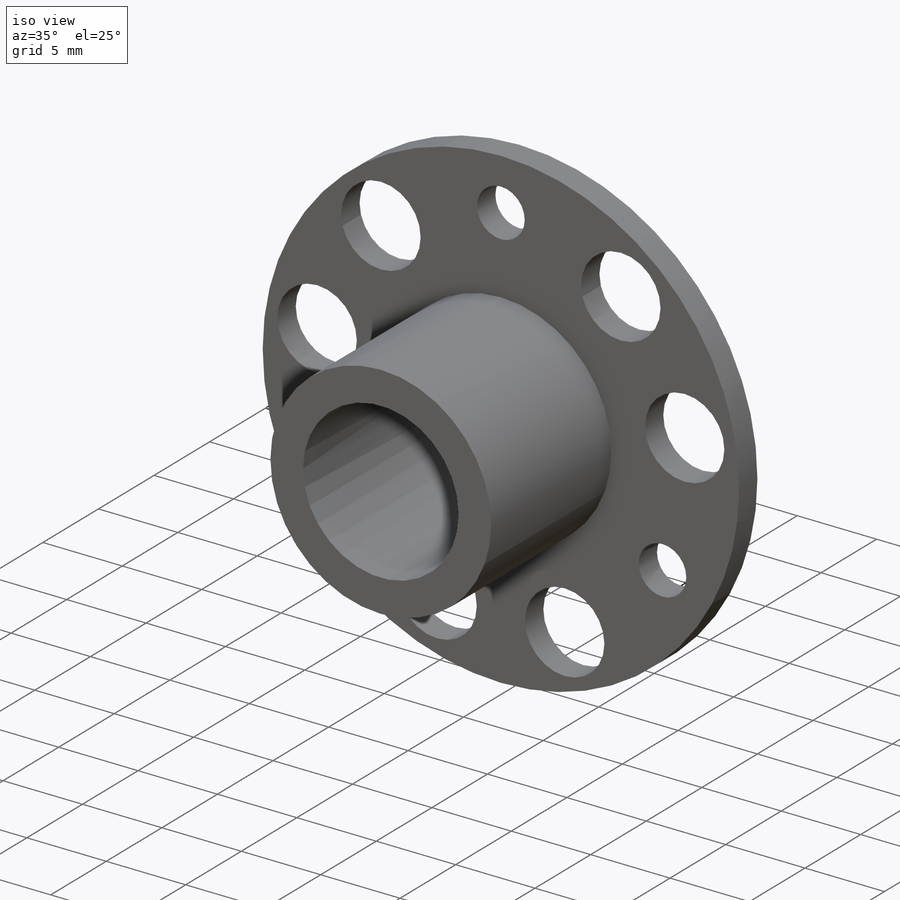
[diagram: iso view]
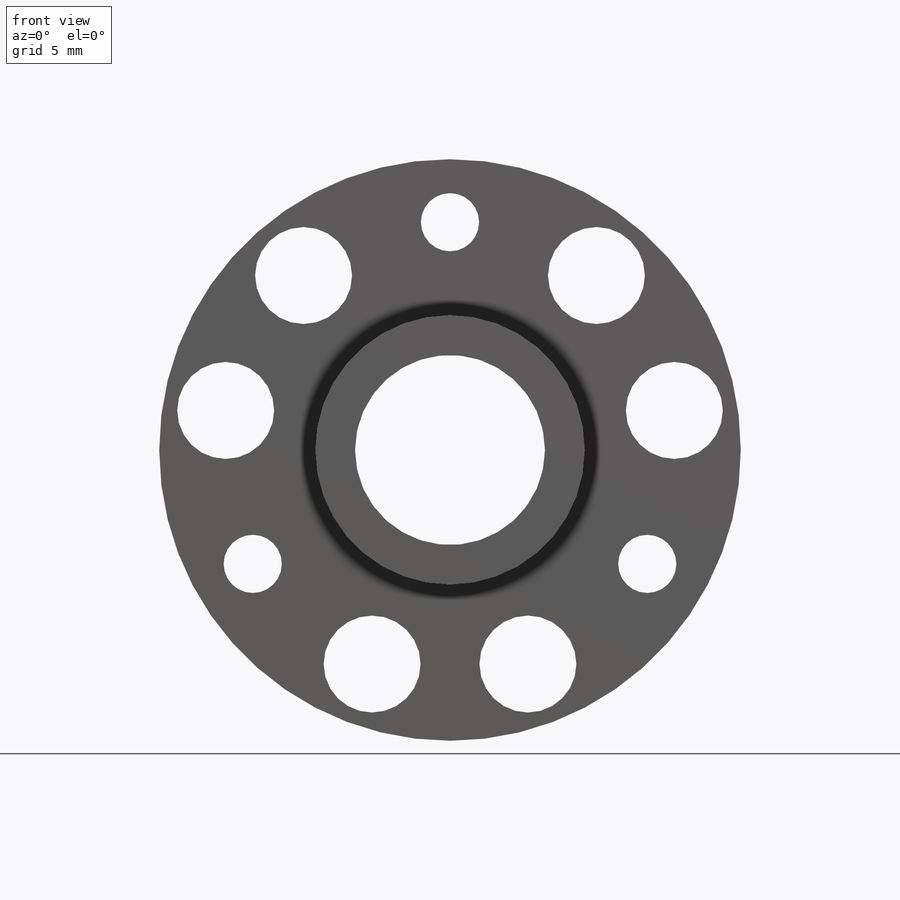
[diagram: front view]
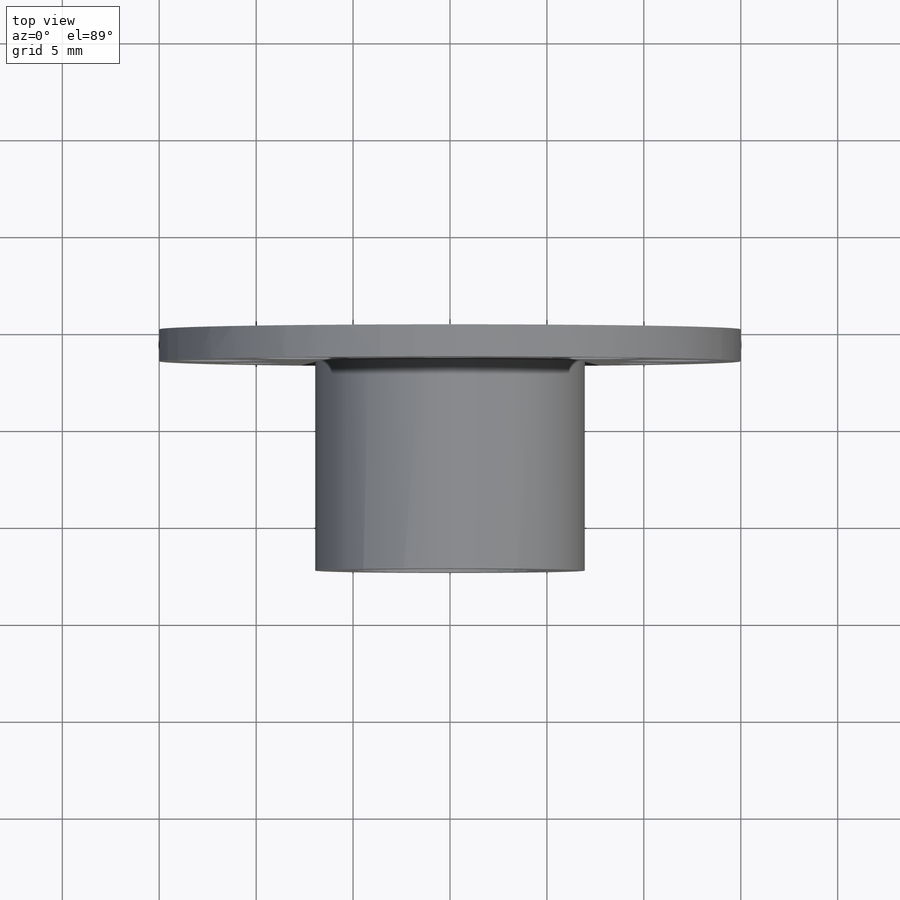
[diagram: top view]
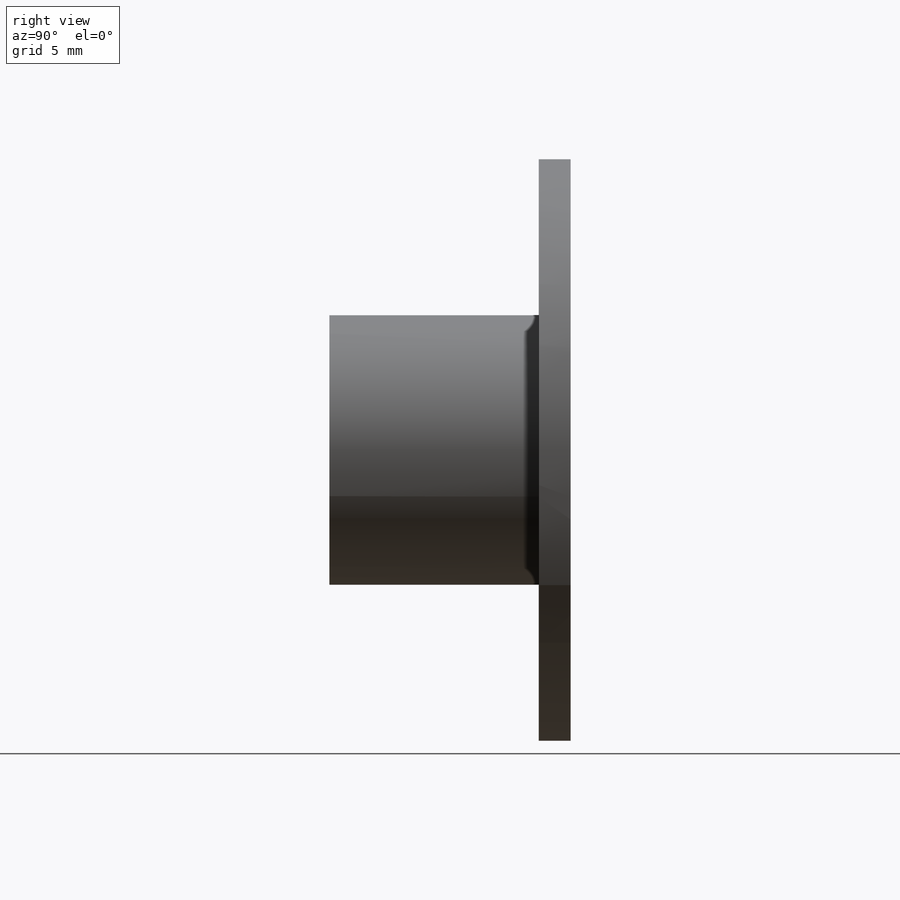
[diagram: right view]
SOLIDWORKS PART (.sldprt)
format: sldprt  version: not decoded by parser v0  size: 240,640 bytes
history: native  units: mm
features: sketch x8, hole x3, material x1, revolve x1, extrude x1, fillet x1 (+12 scaffold rows collapsed)
feature tree (27):
  scaffold x12  (default folders/planes/origin — collapsed)
  material  "Материал <не указан>"
  sketch  "Sketch1"  dims[D1=15.0mm D2=1.65mm]
  revolve  "Revolve1"  Angle=360deg
  sketch  "Sketch2"  dims[D1=13.9mm]
  extrude  "Boss-Extrude1"  Depth=10.8mm
  hole  "Ø5.0 (5) Diameter Hole1"  Diameter=5mm Depth=12.45mm
  sketch  "Sketch4"
  sketch  "Sketch3"  dims[hole-wizard template sketch: 60 standard entries collapsed; hole parameters kept: c18.Thru Hole Depth=12.45mm]
  hole  "Ø3.0 (3) Diameter Hole1"  Diameter=3mm Depth=12.45mm
  sketch  "Sketch6"
  sketch  "Sketch5"  dims[hole-wizard template sketch: 60 standard entries collapsed; hole parameters kept: c18.Thru Hole Depth=12.45mm]
  hole  "Ø9.8 (9.8) Diameter Hole1"  Diameter=9.8mm Depth=12.45mm
  sketch  "Sketch8"
  sketch  "Sketch7"  dims[hole-wizard template sketch: 59 standard entries collapsed; hole parameters kept: c18.Thru Hole Dia.=9.8mm c18.Thru Hole Depth=12.45mm]
  fillet  "Fillet1"  Radius=0.5mm
decode coverage: 11 of 14 modeling features carry decoded parameters
note: ~ marks probable driven/reference dimensions
note: suppression state not decoded; provenance and decode notes live in map.json
